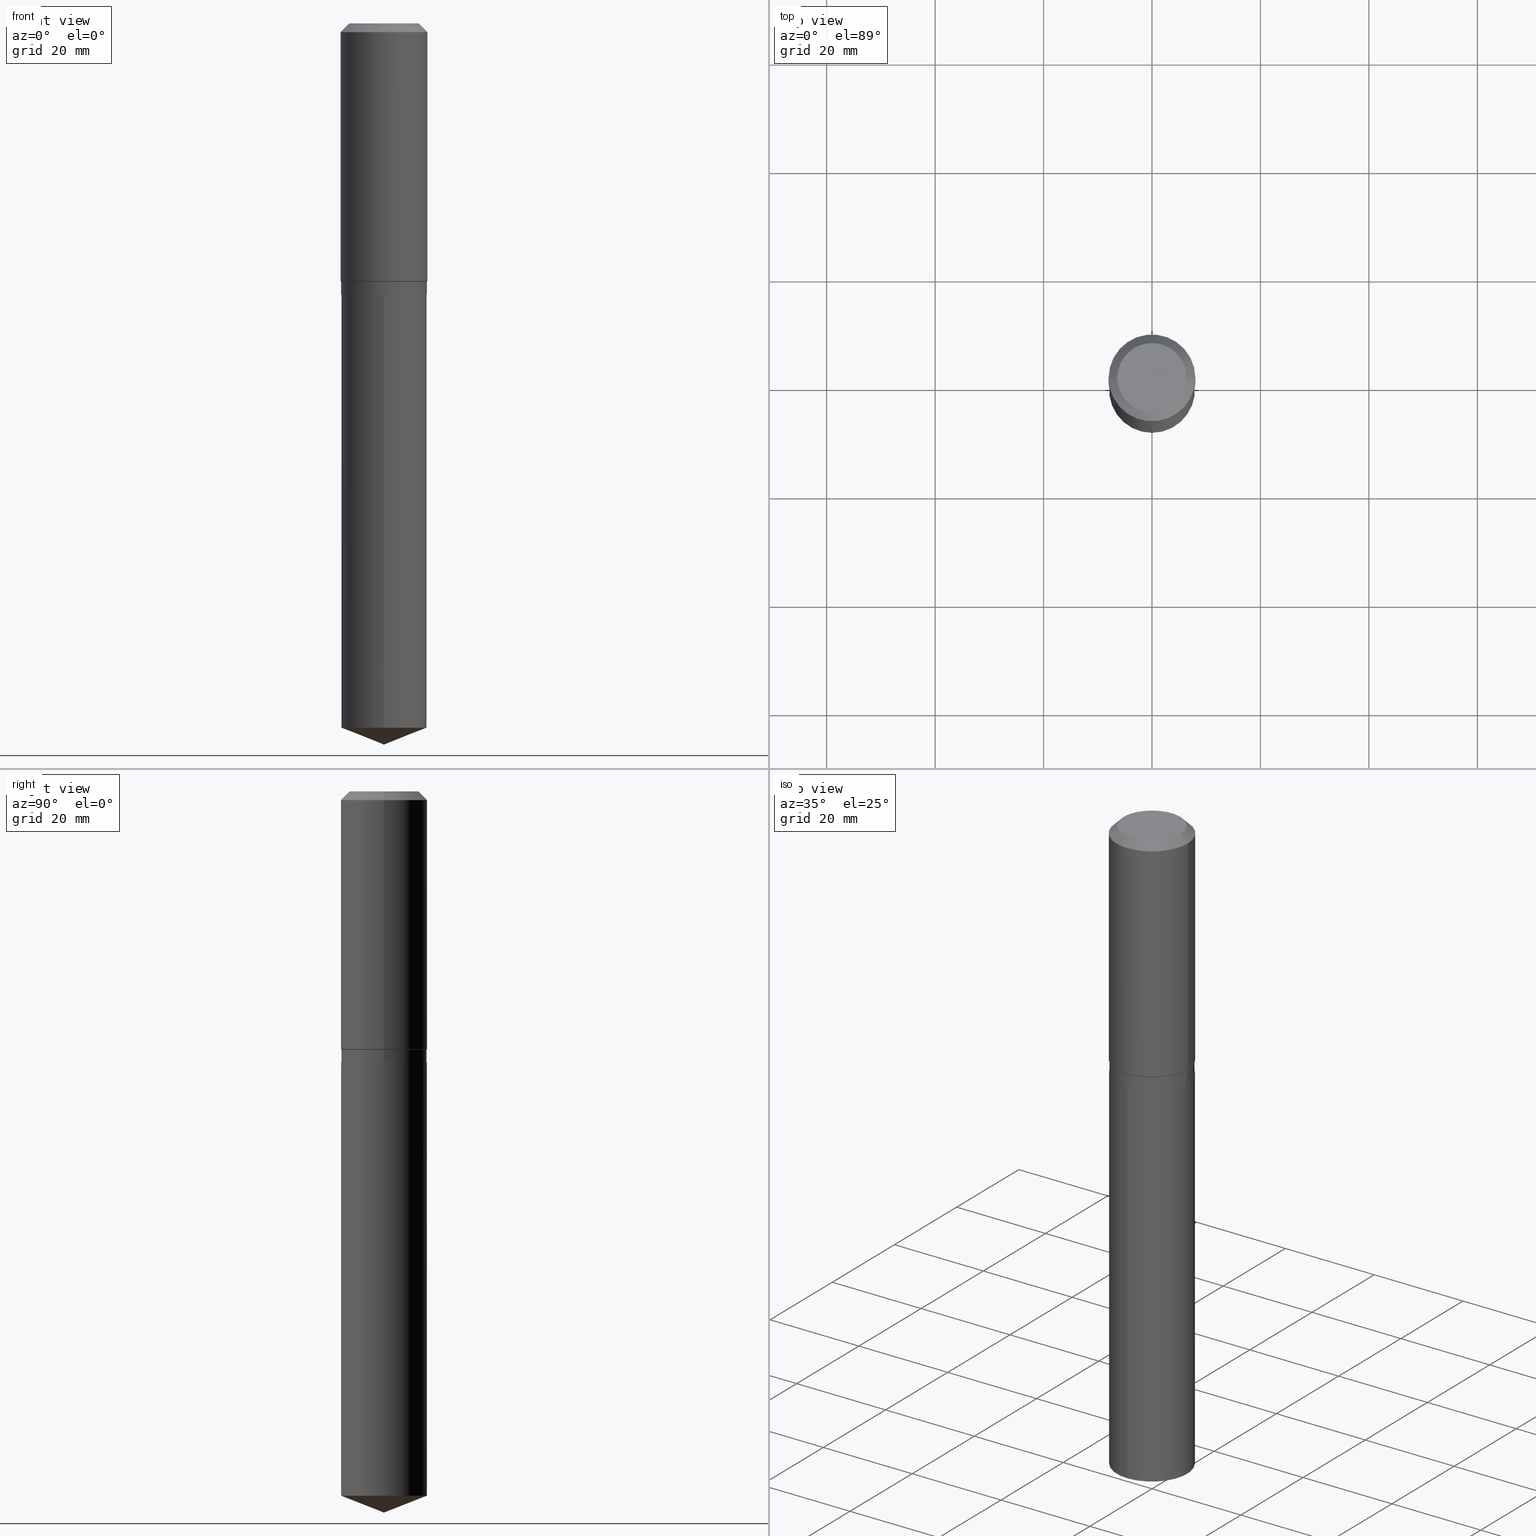
[diagram: canonical four-view strip — front | top / right | iso, engineering-drawing reading convention]
A machine part, canonical four-view strip (front | top / right | iso — engineering-drawing reading convention). The complete STEP part file that produces these views, byte-faithful:
ISO-10303-21;
HEADER;
FILE_DESCRIPTION (( 'STEP AP203' ),
    '1' );
FILE_NAME ('66604.STEP',
    '2024-04-25T01:51:07',
    ( '' ),
    ( '' ),
    'SwSTEP 2.0',
    'SolidWorks 2023',
    '' );
FILE_SCHEMA (( 'CONFIG_CONTROL_DESIGN' ));
ENDSEC;

DATA;
#1 = ORIENTED_EDGE ( 'NONE', *, *, #155, .F. ) ;
#2 = DATE_AND_TIME ( #438, #364 ) ;
#3 = CARTESIAN_POINT ( 'NONE',  ( 0.2519600000000000173, -2.054606664725195058E-15, 3.855188123729206640E-18 ) ) ;
#4 = CC_DESIGN_SECURITY_CLASSIFICATION ( #302, ( #25 ) ) ;
#5 = LINE ( 'NONE', #118, #153 ) ;
#6 = DIRECTION ( 'NONE',  ( 1.000000000000000000, -6.982962677686264344E-15, 0.000000000000000000 ) ) ;
#7 = CARTESIAN_POINT ( 'NONE',  ( 4.813416251214202584E-29, -6.872282719244960739E-15, -1.968299999999999272 ) ) ;
#8 = ORIENTED_EDGE ( 'NONE', *, *, #274, .F. ) ;
#9 = CARTESIAN_POINT ( 'NONE',  ( -0.3110499999999999932, -4.497865342670600152E-15, -1.967799999999999327 ) ) ;
#10 = ADVANCED_FACE ( 'NONE', ( #285 ), #401, .T. ) ;
#11 = PERSON_AND_ORGANIZATION ( #267, #194 ) ;
#12 = CARTESIAN_POINT ( 'NONE',  ( 1.540400801016026329E-30, -2.199284095337310135E-16, -0.06299000000000036514 ) ) ;
#13 = APPLICATION_CONTEXT ( 'configuration controlled 3d designs of mechanical parts and assemblies' ) ;
#14 = CARTESIAN_POINT ( 'NONE',  ( 0.3149500000000000077, -2.380642253931875190E-15, -0.06299000000000036514 ) ) ;
#15 = DIRECTION ( 'NONE',  ( -6.982962677686266711E-15, -1.000000000000000000, 3.498627837350020000E-15 ) ) ;
#16 = AXIS2_PLACEMENT_3D ( 'NONE', #188, #291, #29 ) ;
#17 = VECTOR ( 'NONE', #445, 39.37007874015748854 ) ;
#18 = ORIENTED_EDGE ( 'NONE', *, *, #82, .T. ) ;
#19 = DIRECTION ( 'NONE',  ( -2.445468806185136597E-29, 3.491481338843145583E-15, 1.000000000000000000 ) ) ;
#20 = CARTESIAN_POINT ( 'NONE',  ( -8.346861266608468527E-28, 1.191859629935574637E-13, 34.13407874015748433 ) ) ;
#21 = DIRECTION ( 'NONE',  ( -2.445468806185136597E-29, 3.491481338843145583E-15, 1.000000000000000000 ) ) ;
#22 = EDGE_CURVE ( 'NONE', #470, #327, #127, .T. ) ;
#23 = VECTOR ( 'NONE', #360, 39.37007874015748143 ) ;
#24 = COORDINATED_UNIVERSAL_TIME_OFFSET ( 5, 0, .BEHIND. ) ;
#25 = PRODUCT_DEFINITION_FORMATION_WITH_SPECIFIED_SOURCE ( 'ANY', '', #257, .NOT_KNOWN. ) ;
#26 = DIRECTION ( 'NONE',  ( -2.445324435619551489E-29, 3.491688085710125580E-15, 1.000000000000000000 ) ) ;
#27 = ORIENTED_EDGE ( 'NONE', *, *, #68, .T. ) ;
#28 = EDGE_LOOP ( 'NONE', ( #47, #18, #280, #375 ) ) ;
#29 = DIRECTION ( 'NONE',  ( 1.000000000000000000, -6.982962677686266711E-15, 4.876176775795936353E-29 ) ) ;
#30 = ORIENTED_EDGE ( 'NONE', *, *, #144, .T. ) ;
#31 = AXIS2_PLACEMENT_3D ( 'NONE', #65, #26, #403 ) ;
#32 = AXIS2_PLACEMENT_3D ( 'NONE', #427, #352, #171 ) ;
#33 = CARTESIAN_POINT ( 'NONE',  ( 0.3105500000000000482, -9.040841778800431358E-15, -1.968299999999999272 ) ) ;
#34 = VERTEX_POINT ( 'NONE', #301 ) ;
#35 = ADVANCED_FACE ( 'NONE', ( #271 ), #243, .F. ) ;
#36 = DIRECTION ( 'NONE',  ( -2.445468806185136597E-29, 3.491481338843145583E-15, 1.000000000000000000 ) ) ;
#37 = ADVANCED_FACE ( 'NONE', ( #310 ), #461, .T. ) ;
#38 = VERTEX_POINT ( 'NONE', #134 ) ;
#39 = MANIFOLD_SOLID_BREP ( 'Body-Move/Copy2[1]', #220 ) ;
#40 = AXIS2_PLACEMENT_3D ( 'NONE', #444, #489, #104 ) ;
#41 = VERTEX_POINT ( 'NONE', #209 ) ;
#42 = ADVANCED_FACE ( 'NONE', ( #93 ), #176, .T. ) ;
#43 = DATE_AND_TIME ( #217, #424 ) ;
#44 = CARTESIAN_POINT ( 'NONE',  ( 4.813416251214202584E-29, -6.872282719244960739E-15, -1.968299999999999272 ) ) ;
#45 = DESIGN_CONTEXT ( 'detailed design', #465, 'design' ) ;
#46 = EDGE_CURVE ( 'NONE', #38, #117, #318, .T. ) ;
#47 = ORIENTED_EDGE ( 'NONE', *, *, #191, .T. ) ;
#48 = DIRECTION ( 'NONE',  ( -2.445324435619551489E-29, 3.491688085710125580E-15, 1.000000000000000000 ) ) ;
#49 = CARTESIAN_POINT ( 'NONE',  ( 0.000000000000000000, 0.000000000000000000, 0.000000000000000000 ) ) ;
#50 = AXIS2_PLACEMENT_3D ( 'NONE', #85, #346, #154 ) ;
#51 = DATE_AND_TIME ( #390, #90 ) ;
#52 = EDGE_CURVE ( 'NONE', #377, #265, #353, .T. ) ;
#53 = CARTESIAN_POINT ( 'NONE',  ( -9.427742298522569579E-47, 1.346031739168368629E-32, 3.855188123715871501E-18 ) ) ;
#54 = ORIENTED_EDGE ( 'NONE', *, *, #159, .F. ) ;
#55 = LINE ( 'NONE', #14, #248 ) ;
#56 = AXIS2_PLACEMENT_3D ( 'NONE', #160, #382, #269 ) ;
#57 = EDGE_LOOP ( 'NONE', ( #142, #59, #105, #146 ) ) ;
#58 = LINE ( 'NONE', #437, #137 ) ;
#59 = ORIENTED_EDGE ( 'NONE', *, *, #396, .T. ) ;
#60 = APPROVAL ( #409, 'UNSPECIFIED' ) ;
#61 = CARTESIAN_POINT ( 'NONE',  ( -2.172050540894265111E-15, -0.3110500000000069321, -1.968299999999998162 ) ) ;
#62 = DIRECTION ( 'NONE',  ( -2.445468806185136597E-29, 3.491481338843145583E-15, 1.000000000000000000 ) ) ;
#63 = CONICAL_SURFACE ( 'NONE', #338, 99.94676754583952061, 1.195550537616117959 ) ;
#64 = AXIS2_PLACEMENT_3D ( 'NONE', #277, #19, #210 ) ;
#65 = CARTESIAN_POINT ( 'NONE',  ( 4.813416251214202584E-29, -6.872282719244960739E-15, -1.968299999999999272 ) ) ;
#66 = VERTEX_POINT ( 'NONE', #392 ) ;
#67 = ORIENTED_EDGE ( 'NONE', *, *, #404, .T. ) ;
#68 = EDGE_CURVE ( 'NONE', #327, #470, #212, .T. ) ;
#69 = CARTESIAN_POINT ( 'NONE',  ( 4.813416251214202584E-29, -6.872282719244960739E-15, -1.968299999999999272 ) ) ;
#70 = ORIENTED_EDGE ( 'NONE', *, *, #168, .F. ) ;
#71 = AXIS2_PLACEMENT_3D ( 'NONE', #182, #73, #407 ) ;
#72 = EDGE_CURVE ( 'NONE', #41, #475, #391, .T. ) ;
#73 = DIRECTION ( 'NONE',  ( -2.445468806185136597E-29, 3.491481338843145583E-15, 1.000000000000000000 ) ) ;
#74 = CARTESIAN_POINT ( 'NONE',  ( 0.000000000000000000, 0.000000000000000000, 0.000000000000000000 ) ) ;
#75 = DIRECTION ( 'NONE',  ( 2.438088387897960049E-29, -3.491481338843145188E-15, -1.000000000000000000 ) ) ;
#76 = FACE_OUTER_BOUND ( 'NONE', #114, .T. ) ;
#77 = CARTESIAN_POINT ( 'NONE',  ( 4.813416251214202584E-29, -6.872282719244960739E-15, -1.968299999999999272 ) ) ;
#78 = ORIENTED_EDGE ( 'NONE', *, *, #460, .T. ) ;
#79 = CIRCLE ( 'NONE', #128, 0.3149500000000000077 ) ;
#80 = DIRECTION ( 'NONE',  ( -2.445468806185136877E-29, 3.491481338843145188E-15, 1.000000000000000000 ) ) ;
#81 = AXIS2_PLACEMENT_3D ( 'NONE', #12, #115, #264 ) ;
#82 = EDGE_CURVE ( 'NONE', #34, #362, #58, .T. ) ;
#83 = CARTESIAN_POINT ( 'NONE',  ( 0.3149500000000002298, -8.731147384045044792E-15, -1.870799999999999352 ) ) ;
#84 = DIRECTION ( 'NONE',  ( 1.000000000000000000, -6.982962677686265922E-15, 4.876176775795935793E-29 ) ) ;
#85 = CARTESIAN_POINT ( 'NONE',  ( 1.250438744607617227E-28, -1.785424981427193522E-14, -5.113474146559972233 ) ) ;
#86 = ORIENTED_EDGE ( 'NONE', *, *, #278, .F. ) ;
#87 = PERSON_AND_ORGANIZATION_ROLE ( 'classification_officer' ) ;
#88 = ADVANCED_FACE ( 'NONE', ( #98 ), #163, .T. ) ;
#89 = CIRCLE ( 'NONE', #71, 0.3105500000000000482 ) ;
#90 = LOCAL_TIME ( 21, 51, 7.000000000000000000, #239 ) ;
#91 = PRODUCT_DEFINITION ( 'UNKNOWN', '', #25, #45 ) ;
#92 = DIRECTION ( 'NONE',  ( -2.445324435619551489E-29, 3.491688085710125580E-15, 1.000000000000000000 ) ) ;
#93 = FACE_OUTER_BOUND ( 'NONE', #187, .T. ) ;
#94 = ORIENTED_EDGE ( 'NONE', *, *, #72, .F. ) ;
#95 = AXIS2_PLACEMENT_3D ( 'NONE', #44, #453, #164 ) ;
#96 = ADVANCED_FACE ( 'NONE', ( #359 ), #241, .T. ) ;
#97 = CARTESIAN_POINT ( 'NONE',  ( 0.3149500000000001743, -2.199284095337290660E-15, 1.535751875536930690E-29 ) ) ;
#98 = FACE_OUTER_BOUND ( 'NONE', #473, .T. ) ;
#99 = DIRECTION ( 'NONE',  ( 1.000000000000000000, -6.982962677686265133E-15, 0.000000000000000000 ) ) ;
#100 = CARTESIAN_POINT ( 'NONE',  ( 1.250438744607617227E-28, -1.785424981427193522E-14, -5.113474146559972233 ) ) ;
#101 = COORDINATED_UNIVERSAL_TIME_OFFSET ( 5, 0, .BEHIND. ) ;
#102 = DIRECTION ( 'NONE',  ( 1.000000000000000000, -6.982962677686266711E-15, 0.000000000000000000 ) ) ;
#103 = EDGE_LOOP ( 'NONE', ( #30, #78, #366, #319 ) ) ;
#104 = DIRECTION ( 'NONE',  ( 1.000000000000000000, -6.982962677686264344E-15, 0.000000000000000000 ) ) ;
#105 = ORIENTED_EDGE ( 'NONE', *, *, #198, .F. ) ;
#106 = ORIENTED_EDGE ( 'NONE', *, *, #485, .T. ) ;
#107 = DIRECTION ( 'NONE',  ( -2.445468806185136597E-29, 3.491481338843145583E-15, 1.000000000000000000 ) ) ;
#108 = EDGE_LOOP ( 'NONE', ( #1, #161, #408, #201 ) ) ;
#109 = VECTOR ( 'NONE', #434, 39.37007874015748854 ) ;
#110 = ADVANCED_FACE ( 'NONE', ( #398 ), #63, .T. ) ;
#111 = VECTOR ( 'NONE', #313, 39.37007874015748143 ) ;
#112 = VECTOR ( 'NONE', #320, 39.37007874015748143 ) ;
#113 = FACE_OUTER_BOUND ( 'NONE', #166, .T. ) ;
#114 = EDGE_LOOP ( 'NONE', ( #429, #229, #371, #70 ) ) ;
#115 = DIRECTION ( 'NONE',  ( 2.445468806185136597E-29, -3.491481338843145583E-15, -1.000000000000000000 ) ) ;
#116 = CARTESIAN_POINT ( 'NONE',  ( 0.3110499999999999932, -2.172050540894313232E-15, 1.516734786111326002E-29 ) ) ;
#117 = VERTEX_POINT ( 'NONE', #321 ) ;
#118 = CARTESIAN_POINT ( 'NONE',  ( -0.3149500000000001743, 2.237854346276436774E-15, -1.549218606675783237E-29 ) ) ;
#119 = CONICAL_SURFACE ( 'NONE', #81, 0.3149500000000000077, 0.7853981633974452814 ) ;
#120 = ORIENTED_EDGE ( 'NONE', *, *, #347, .F. ) ;
#121 = ORIENTED_EDGE ( 'NONE', *, *, #278, .T. ) ;
#122 = EDGE_CURVE ( 'NONE', #247, #183, #350, .T. ) ;
#123 = PERSON_AND_ORGANIZATION_ROLE ( 'design_supplier' ) ;
#124 = DATE_TIME_ROLE ( 'creation_date' ) ;
#125 = CALENDAR_DATE ( 2024, 24, 4 ) ;
#126 = EDGE_CURVE ( 'NONE', #362, #183, #411, .T. ) ;
#127 = CIRCLE ( 'NONE', #331, 0.2519600000000000173 ) ;
#128 = AXIS2_PLACEMENT_3D ( 'NONE', #326, #373, #102 ) ;
#129 = CARTESIAN_POINT ( 'NONE',  ( 0.3110499999999999932, -8.717530606823556276E-15, -1.874699999999999589 ) ) ;
#130 = AXIS2_PLACEMENT_3D ( 'NONE', #233, #378, #196 ) ;
#131 = ADVANCED_FACE ( 'NONE', ( #279 ), #136, .T. ) ;
#132 = DIRECTION ( 'NONE',  ( -2.445468806185136597E-29, 3.491481338843145583E-15, 1.000000000000000000 ) ) ;
#133 = ORIENTED_EDGE ( 'NONE', *, *, #198, .T. ) ;
#134 = CARTESIAN_POINT ( 'NONE',  ( -2.172050540894188197E-15, -0.3110500000000178678, -5.113474146559971345 ) ) ;
#135 = ORIENTED_EDGE ( 'NONE', *, *, #52, .F. ) ;
#136 = CYLINDRICAL_SURFACE ( 'NONE', #172, 0.3149500000000001743 ) ;
#137 = VECTOR ( 'NONE', #211, 39.37007874015748143 ) ;
#138 = CARTESIAN_POINT ( 'NONE',  ( 4.584520370955274765E-29, -6.545480065929243438E-15, -1.874699999999999589 ) ) ;
#139 = DIRECTION ( 'NONE',  ( 1.000000000000000000, -6.982962677686266711E-15, 4.876115136096691995E-29 ) ) ;
#140 = ORIENTED_EDGE ( 'NONE', *, *, #168, .T. ) ;
#141 = CYLINDRICAL_SURFACE ( 'NONE', #16, 0.3110499999999999932 ) ;
#142 = ORIENTED_EDGE ( 'NONE', *, *, #274, .T. ) ;
#143 = ORIENTED_EDGE ( 'NONE', *, *, #416, .F. ) ;
#144 = EDGE_CURVE ( 'NONE', #38, #369, #204, .T. ) ;
#145 = VECTOR ( 'NONE', #249, 39.37007874015748854 ) ;
#146 = ORIENTED_EDGE ( 'NONE', *, *, #422, .F. ) ;
#147 = AXIS2_PLACEMENT_3D ( 'NONE', #77, #157, #306 ) ;
#148 = LINE ( 'NONE', #297, #17 ) ;
#149 = CC_DESIGN_PERSON_AND_ORGANIZATION_ASSIGNMENT ( #421, #87, ( #302 ) ) ;
#150 = EDGE_LOOP ( 'NONE', ( #135, #308, #478, #342 ) ) ;
#151 = DIRECTION ( 'NONE',  ( 1.000000000000000000, 0.000000000000000000, 0.000000000000000000 ) ) ;
#152 = ORIENTED_EDGE ( 'NONE', *, *, #365, .F. ) ;
#153 = VECTOR ( 'NONE', #80, 39.37007874015748143 ) ;
#154 = DIRECTION ( 'NONE',  ( -6.982962677686266711E-15, -1.000000000000000000, 3.513066058401238903E-15 ) ) ;
#155 = EDGE_CURVE ( 'NONE', #327, #340, #55, .T. ) ;
#156 = LINE ( 'NONE', #116, #309 ) ;
#157 = DIRECTION ( 'NONE',  ( 2.445324435619551208E-29, -3.491688085710125580E-15, -1.000000000000000000 ) ) ;
#158 = SHAPE_DEFINITION_REPRESENTATION ( #230, #361 ) ;
#159 = EDGE_CURVE ( 'NONE', #34, #247, #345, .T. ) ;
#160 = CARTESIAN_POINT ( 'NONE',  ( 1.540400801016026329E-30, -2.199284095337310135E-16, -0.06299000000000036514 ) ) ;
#161 = ORIENTED_EDGE ( 'NONE', *, *, #22, .F. ) ;
#162 = APPROVAL_ROLE ( '' ) ;
#163 = CONICAL_SURFACE ( 'NONE', #179, 0.3105500000000000482, 0.7853981633975165577 ) ;
#164 = DIRECTION ( 'NONE',  ( 1.000000000000000000, -6.982962677686268288E-15, 0.000000000000000000 ) ) ;
#165 = ADVANCED_FACE ( 'NONE', ( #439 ), #258, .T. ) ;
#166 = EDGE_LOOP ( 'NONE', ( #441, #27 ) ) ;
#167 = APPROVAL_DATE_TIME ( #385, #237 ) ;
#168 = EDGE_CURVE ( 'NONE', #203, #117, #286, .T. ) ;
#169 = DIRECTION ( 'NONE',  ( 0.7071067811865453523, -7.319954787623248157E-15, -0.7071067811865496822 ) ) ;
#170 =( NAMED_UNIT ( * ) PLANE_ANGLE_UNIT ( ) SI_UNIT ( $, .RADIAN. ) );
#171 = DIRECTION ( 'NONE',  ( 1.000000000000000000, -6.982962677686266711E-15, 0.000000000000000000 ) ) ;
#172 = AXIS2_PLACEMENT_3D ( 'NONE', #428, #287, #477 ) ;
#173 = CARTESIAN_POINT ( 'NONE',  ( -8.346861266608468527E-28, 1.191859629935574637E-13, 34.13407874015748433 ) ) ;
#174 = CC_DESIGN_APPROVAL ( #237, ( #25 ) ) ;
#175 = CC_DESIGN_PERSON_AND_ORGANIZATION_ASSIGNMENT ( #442, #435, ( #91 ) ) ;
#176 = CYLINDRICAL_SURFACE ( 'NONE', #273, 0.3110499999999999932 ) ;
#177 = LINE ( 'NONE', #97, #112 ) ;
#178 = CARTESIAN_POINT ( 'NONE',  ( 4.812193516811110904E-29, -6.870536978575539236E-15, -1.967799999999999327 ) ) ;
#179 = AXIS2_PLACEMENT_3D ( 'NONE', #426, #21, #251 ) ;
#180 = VECTOR ( 'NONE', #383, 39.37007874015748143 ) ;
#181 = ORIENTED_EDGE ( 'NONE', *, *, #404, .F. ) ;
#182 = CARTESIAN_POINT ( 'NONE',  ( 4.813416251214202584E-29, -6.872282719244960739E-15, -1.968299999999999272 ) ) ;
#183 = VERTEX_POINT ( 'NONE', #225 ) ;
#184 = CC_DESIGN_PERSON_AND_ORGANIZATION_ASSIGNMENT ( #462, #123, ( #25 ) ) ;
#185 = ORIENTED_EDGE ( 'NONE', *, *, #159, .T. ) ;
#186 = LINE ( 'NONE', #328, #189 ) ;
#187 = EDGE_LOOP ( 'NONE', ( #299, #333, #86, #181 ) ) ;
#188 = CARTESIAN_POINT ( 'NONE',  ( 0.000000000000000000, 0.000000000000000000, 0.000000000000000000 ) ) ;
#189 = VECTOR ( 'NONE', #486, 39.37007874015748143 ) ;
#190 = APPROVAL_PERSON_ORGANIZATION ( #348, #60, #250 ) ;
#191 = EDGE_CURVE ( 'NONE', #247, #34, #89, .T. ) ;
#192 = DIRECTION ( 'NONE',  ( -2.445468806185136597E-29, 3.491481338843145583E-15, 1.000000000000000000 ) ) ;
#193 = APPROVAL_STATUS ( 'not_yet_approved' ) ;
#194 = ORGANIZATION ( 'UNSPECIFIED', 'UNSPECIFIED', '' ) ;
#195 = COORDINATED_UNIVERSAL_TIME_OFFSET ( 5, 0, .BEHIND. ) ;
#196 = DIRECTION ( 'NONE',  ( -6.982962677686266711E-15, -1.000000000000000000, 3.513066058401238903E-15 ) ) ;
#197 = ORIENTED_EDGE ( 'NONE', *, *, #126, .T. ) ;
#198 = EDGE_CURVE ( 'NONE', #340, #394, #79, .T. ) ;
#199 = CARTESIAN_POINT ( 'NONE',  ( 4.584520370955274765E-29, -6.545480065929243438E-15, -1.874699999999999589 ) ) ;
#200 = CARTESIAN_POINT ( 'NONE',  ( 2.210143179581839306E-15, 0.3110499999999931098, -1.968300000000000383 ) ) ;
#201 = ORIENTED_EDGE ( 'NONE', *, *, #416, .T. ) ;
#202 = DIRECTION ( 'NONE',  ( -2.445468806185136877E-29, 3.491481338843145188E-15, 1.000000000000000000 ) ) ;
#203 = VERTEX_POINT ( 'NONE', #367 ) ;
#204 = CIRCLE ( 'NONE', #228, 0.3110499999999999932 ) ;
#205 = FACE_OUTER_BOUND ( 'NONE', #336, .T. ) ;
#206 = AXIS2_PLACEMENT_3D ( 'NONE', #74, #335, #151 ) ;
#207 = DATE_TIME_ROLE ( 'classification_date' ) ;
#208 =( LENGTH_UNIT ( ) NAMED_UNIT ( * ) SI_UNIT ( $, .METRE. ) );
#209 = CARTESIAN_POINT ( 'NONE',  ( 0.3110499999999999932, -8.717530606823556276E-15, -1.874699999999999589 ) ) ;
#210 = DIRECTION ( 'NONE',  ( 1.000000000000000000, -6.982962677686265133E-15, 0.000000000000000000 ) ) ;
#211 = DIRECTION ( 'NONE',  ( -0.7071067811865957564, 7.493145998870527710E-15, 0.7071067811864992780 ) ) ;
#212 = CIRCLE ( 'NONE', #402, 0.2519600000000000173 ) ;
#213 = DIRECTION ( 'NONE',  ( -2.445468806185136597E-29, 3.491481338843145583E-15, 1.000000000000000000 ) ) ;
#214 = APPROVAL_PERSON_ORGANIZATION ( #446, #322, #490 ) ;
#215 = ORIENTED_EDGE ( 'NONE', *, *, #422, .T. ) ;
#216 = ORIENTED_EDGE ( 'NONE', *, *, #481, .F. ) ;
#217 = CALENDAR_DATE ( 2024, 24, 4 ) ;
#218 = ADVANCED_FACE ( 'NONE', ( #479 ), #141, .T. ) ;
#219 = DIRECTION ( 'NONE',  ( -6.982962677686266711E-15, -1.000000000000000000, 3.498627837350020000E-15 ) ) ;
#220 = CLOSED_SHELL ( 'NONE', ( #165, #96, #110, #393, #452 ) ) ;
#221 = DIRECTION ( 'NONE',  ( -2.445324435619551489E-29, 3.491688085710125580E-15, 1.000000000000000000 ) ) ;
#222 = EDGE_CURVE ( 'NONE', #470, #394, #186, .T. ) ;
#223 = CC_DESIGN_APPROVAL ( #60, ( #302 ) ) ;
#224 = ORIENTED_EDGE ( 'NONE', *, *, #68, .F. ) ;
#225 = CARTESIAN_POINT ( 'NONE',  ( 0.3110499999999999932, -9.042587519469852073E-15, -1.967799999999999327 ) ) ;
#226 = ORIENTED_EDGE ( 'NONE', *, *, #144, .F. ) ;
#227 = DIRECTION ( 'NONE',  ( -6.982962677686266711E-15, -1.000000000000000000, 3.513066058401238903E-15 ) ) ;
#228 = AXIS2_PLACEMENT_3D ( 'NONE', #100, #245, #395 ) ;
#229 = ORIENTED_EDGE ( 'NONE', *, *, #365, .T. ) ;
#230 = PRODUCT_DEFINITION_SHAPE ( 'NONE', 'NONE',  #91 ) ;
#231 = ORIENTED_EDGE ( 'NONE', *, *, #481, .T. ) ;
#232 = DIRECTION ( 'NONE',  ( -2.445468806185136597E-29, 3.491481338843145583E-15, 1.000000000000000000 ) ) ;
#233 = CARTESIAN_POINT ( 'NONE',  ( 4.813416251214202584E-29, -6.872282719244960739E-15, -1.968299999999999272 ) ) ;
#234 = EDGE_LOOP ( 'NONE', ( #121, #292, #8, #94 ) ) ;
#235 = LINE ( 'NONE', #200, #180 ) ;
#236 = CARTESIAN_POINT ( 'NONE',  ( -4.713871149261284790E-47, 6.730158695841843144E-33, 1.927594061857935750E-18 ) ) ;
#237 = APPROVAL ( #281, 'UNSPECIFIED' ) ;
#238 = DIRECTION ( 'NONE',  ( 1.000000000000000000, -6.982962677686265133E-15, 0.000000000000000000 ) ) ;
#239 = COORDINATED_UNIVERSAL_TIME_OFFSET ( 5, 0, .BEHIND. ) ;
#240 = MECHANICAL_CONTEXT ( 'NONE', #13, 'mechanical' ) ;
#241 = CONICAL_SURFACE ( 'NONE', #484, 99.94676754583952061, 1.195550537616117959 ) ;
#242 = AXIS2_PLACEMENT_3D ( 'NONE', #199, #36, #238 ) ;
#243 = PLANE ( 'NONE',  #363 ) ;
#244 = CARTESIAN_POINT ( 'NONE',  ( 0.000000000000000000, 0.000000000000000000, 0.000000000000000000 ) ) ;
#245 = DIRECTION ( 'NONE',  ( -2.445324435619551489E-29, 3.491688085710125580E-15, 1.000000000000000000 ) ) ;
#246 = CC_DESIGN_PERSON_AND_ORGANIZATION_ASSIGNMENT ( #349, #425, ( #257 ) ) ;
#247 = VERTEX_POINT ( 'NONE', #33 ) ;
#248 = VECTOR ( 'NONE', #169, 39.37007874015748143 ) ;
#249 = DIRECTION ( 'NONE',  ( -0.7071067811865474617, 7.493145998870352582E-15, 0.7071067811865474617 ) ) ;
#250 = APPROVAL_ROLE ( '' ) ;
#251 = DIRECTION ( 'NONE',  ( 1.000000000000000000, -6.982962677686268288E-15, 0.000000000000000000 ) ) ;
#252 = CARTESIAN_POINT ( 'NONE',  ( -9.427742298522569579E-47, 1.346031739168368629E-32, 3.855188123715871501E-18 ) ) ;
#253 = EDGE_CURVE ( 'NONE', #183, #362, #476, .T. ) ;
#254 = ORIENTED_EDGE ( 'NONE', *, *, #126, .F. ) ;
#255 = CIRCLE ( 'NONE', #40, 0.3149500000000002298 ) ;
#256 = CC_DESIGN_APPROVAL ( #322, ( #91 ) ) ;
#257 = PRODUCT ( '66604', '66604', '', ( #240 ) ) ;
#258 = CYLINDRICAL_SURFACE ( 'NONE', #423, 0.3110499999999999932 ) ;
#259 = EDGE_LOOP ( 'NONE', ( #399, #54 ) ) ;
#260 = CIRCLE ( 'NONE', #324, 0.3110499999999999932 ) ;
#261 = ORIENTED_EDGE ( 'NONE', *, *, #485, .F. ) ;
#262 = FACE_OUTER_BOUND ( 'NONE', #108, .T. ) ;
#263 =( CONVERSION_BASED_UNIT ( 'INCH', #450 ) LENGTH_UNIT ( ) NAMED_UNIT ( #276 ) );
#264 = DIRECTION ( 'NONE',  ( -1.000000000000000000, 6.982962677686266711E-15, 0.000000000000000000 ) ) ;
#265 = VERTEX_POINT ( 'NONE', #334 ) ;
#266 = CARTESIAN_POINT ( 'NONE',  ( 4.574983042611151699E-29, -6.531863288707754922E-15, -1.870799999999999352 ) ) ;
#267 = PERSON ( 'UNSPECIFIED', 'UNSPECIFIED', 'UNSPECIFIED', ('UNSPECIFIED'), ('UNSPECIFIED'), ('UNSPECIFIED') ) ;
#268 = AXIS2_PLACEMENT_3D ( 'NONE', #298, #414, #337 ) ;
#269 = DIRECTION ( 'NONE',  ( -1.000000000000000000, 6.982962677686266711E-15, 0.000000000000000000 ) ) ;
#270 = CARTESIAN_POINT ( 'NONE',  ( -0.2519600000000000173, 1.869391481036695286E-15, 3.855188123703182704E-18 ) ) ;
#271 = FACE_OUTER_BOUND ( 'NONE', #259, .T. ) ;
#272 = APPLICATION_PROTOCOL_DEFINITION ( 'international standard', 'config_control_design', 1994, #13 ) ;
#273 = AXIS2_PLACEMENT_3D ( 'NONE', #244, #431, #275 ) ;
#274 = EDGE_CURVE ( 'NONE', #475, #265, #255, .T. ) ;
#275 = DIRECTION ( 'NONE',  ( 1.000000000000000000, -6.982962677686266711E-15, 4.876176775795936353E-29 ) ) ;
#276 = DIMENSIONAL_EXPONENTS ( 1.000000000000000000, 0.000000000000000000, 0.000000000000000000, 0.000000000000000000, 0.000000000000000000, 0.000000000000000000, 0.000000000000000000 ) ;
#277 = CARTESIAN_POINT ( 'NONE',  ( 4.584520370955274765E-29, -6.545480065929243438E-15, -1.874699999999999589 ) ) ;
#278 = EDGE_CURVE ( 'NONE', #41, #377, #315, .T. ) ;
#279 = FACE_OUTER_BOUND ( 'NONE', #57, .T. ) ;
#280 = ORIENTED_EDGE ( 'NONE', *, *, #253, .F. ) ;
#281 = APPROVAL_STATUS ( 'not_yet_approved' ) ;
#282 = DIRECTION ( 'NONE',  ( -2.445468806185136877E-29, 3.491481338843145188E-15, 1.000000000000000000 ) ) ;
#283 = CARTESIAN_POINT ( 'NONE',  ( -0.3110499999999999932, -4.335336886347452253E-15, -1.874699999999999589 ) ) ;
#284 = ADVANCED_FACE ( 'NONE', ( #262 ), #432, .T. ) ;
#285 = FACE_OUTER_BOUND ( 'NONE', #150, .T. ) ;
#286 = CIRCLE ( 'NONE', #31, 0.3110499999999999932 ) ;
#287 = DIRECTION ( 'NONE',  ( -2.445468806185136597E-29, 3.491481338843145583E-15, 1.000000000000000000 ) ) ;
#288 = DIRECTION ( 'NONE',  ( -2.445468806185136597E-29, 3.491481338843145583E-15, 1.000000000000000000 ) ) ;
#289 = DIRECTION ( 'NONE',  ( -2.445324435619551489E-29, 3.491688085710125580E-15, 1.000000000000000000 ) ) ;
#290 = EDGE_LOOP ( 'NONE', ( #261, #231, #226 ) ) ;
#291 = DIRECTION ( 'NONE',  ( -2.445468806185136597E-29, 3.491481338843145583E-15, 1.000000000000000000 ) ) ;
#292 = ORIENTED_EDGE ( 'NONE', *, *, #52, .T. ) ;
#293 = APPROVAL_DATE_TIME ( #314, #322 ) ;
#294 = DIRECTION ( 'NONE',  ( 1.000000000000000000, -6.982962677686265133E-15, 0.000000000000000000 ) ) ;
#295 = CARTESIAN_POINT ( 'NONE',  ( 1.280429205764840004E-28, -1.828166493706166554E-14, -5.235999999999999766 ) ) ;
#296 = DIRECTION ( 'NONE',  ( 1.000000000000000000, -6.982962677686268288E-15, 0.000000000000000000 ) ) ;
#297 = CARTESIAN_POINT ( 'NONE',  ( 1.280371874490396796E-28, -1.828247881677821696E-14, -5.235999999999999766 ) ) ;
#298 = CARTESIAN_POINT ( 'NONE',  ( 4.584520370955274765E-29, -6.545480065929243438E-15, -1.874699999999999589 ) ) ;
#299 = ORIENTED_EDGE ( 'NONE', *, *, #253, .T. ) ;
#300 = ADVANCED_FACE ( 'NONE', ( #113 ), #412, .F. ) ;
#301 = CARTESIAN_POINT ( 'NONE',  ( -0.3105500000000000482, -4.663043026167858463E-15, -1.968299999999999272 ) ) ;
#302 = SECURITY_CLASSIFICATION ( '', '', #351 ) ;
#303 = EDGE_CURVE ( 'NONE', #117, #203, #260, .T. ) ;
#304 = DIRECTION ( 'NONE',  ( -1.000000000000000000, 6.982962677686265922E-15, -4.876176775795935793E-29 ) ) ;
#305 = EDGE_CURVE ( 'NONE', #265, #475, #354, .T. ) ;
#306 = DIRECTION ( 'NONE',  ( 6.982962677686265922E-15, 1.000000000000000000, -3.491688085710125580E-15 ) ) ;
#307 = LINE ( 'NONE', #417, #379 ) ;
#308 = ORIENTED_EDGE ( 'NONE', *, *, #381, .T. ) ;
#309 = VECTOR ( 'NONE', #282, 39.37007874015748143 ) ;
#310 = FACE_OUTER_BOUND ( 'NONE', #356, .T. ) ;
#311 = PERSON_AND_ORGANIZATION_ROLE ( 'creator' ) ;
#312 = COORDINATED_UNIVERSAL_TIME_OFFSET ( 5, 0, .BEHIND. ) ;
#313 = DIRECTION ( 'NONE',  ( -2.445324435619551208E-29, 3.491688085710125580E-15, 1.000000000000000000 ) ) ;
#314 = DATE_AND_TIME ( #125, #468 ) ;
#315 = CIRCLE ( 'NONE', #268, 0.3110499999999999932 ) ;
#316 = CC_DESIGN_PERSON_AND_ORGANIZATION_ASSIGNMENT ( #11, #311, ( #25 ) ) ;
#317 = APPROVAL_PERSON_ORGANIZATION ( #406, #237, #162 ) ;
#318 = LINE ( 'NONE', #61, #111 ) ;
#319 = ORIENTED_EDGE ( 'NONE', *, *, #46, .F. ) ;
#320 = DIRECTION ( 'NONE',  ( -2.445468806185136877E-29, 3.491481338843145188E-15, 1.000000000000000000 ) ) ;
#321 = CARTESIAN_POINT ( 'NONE',  ( -2.172050540894265111E-15, -0.3110500000000069321, -1.968299999999998162 ) ) ;
#322 = APPROVAL ( #193, 'UNSPECIFIED' ) ;
#323 = ORIENTED_EDGE ( 'NONE', *, *, #82, .F. ) ;
#324 = AXIS2_PLACEMENT_3D ( 'NONE', #420, #48, #343 ) ;
#325 = VECTOR ( 'NONE', #487, 39.37007874015748854 ) ;
#326 = CARTESIAN_POINT ( 'NONE',  ( 1.540400801016026329E-30, -2.199284095337310135E-16, -0.06299000000000036514 ) ) ;
#327 = VERTEX_POINT ( 'NONE', #3 ) ;
#328 = CARTESIAN_POINT ( 'NONE',  ( -0.3149500000000000077, 1.979355685803558833E-15, -0.06299000000000036514 ) ) ;
#329 = ORIENTED_EDGE ( 'NONE', *, *, #303, .T. ) ;
#330 = CC_DESIGN_DATE_AND_TIME_ASSIGNMENT ( #43, #124, ( #91 ) ) ;
#331 = AXIS2_PLACEMENT_3D ( 'NONE', #252, #107, #368 ) ;
#332 = AXIS2_PLACEMENT_3D ( 'NONE', #236, #75, #304 ) ;
#333 = ORIENTED_EDGE ( 'NONE', *, *, #347, .T. ) ;
#334 = CARTESIAN_POINT ( 'NONE',  ( -0.3149500000000002298, -4.294008942431317359E-15, -1.870799999999999352 ) ) ;
#335 = DIRECTION ( 'NONE',  ( 0.000000000000000000, 0.000000000000000000, 1.000000000000000000 ) ) ;
#336 = EDGE_LOOP ( 'NONE', ( #224, #419, #133, #483 ) ) ;
#337 = DIRECTION ( 'NONE',  ( 1.000000000000000000, -6.982962677686265133E-15, 0.000000000000000000 ) ) ;
#338 = AXIS2_PLACEMENT_3D ( 'NONE', #20, #289, #219 ) ;
#339 = CONICAL_SURFACE ( 'NONE', #95, 0.3105500000000000482, 0.7853981633975165577 ) ;
#340 = VERTEX_POINT ( 'NONE', #344 ) ;
#341 = CARTESIAN_POINT ( 'NONE',  ( -0.3149500000000000077, -1.138041502844306206E-15, -0.06299000000000036514 ) ) ;
#342 = ORIENTED_EDGE ( 'NONE', *, *, #305, .F. ) ;
#343 = DIRECTION ( 'NONE',  ( -6.982962677686266711E-15, -1.000000000000000000, 3.513066058401238903E-15 ) ) ;
#344 = CARTESIAN_POINT ( 'NONE',  ( 0.3149500000000000077, -2.419212504871020909E-15, -0.06299000000000036514 ) ) ;
#345 = CIRCLE ( 'NONE', #374, 0.3105500000000000482 ) ;
#346 = DIRECTION ( 'NONE',  ( -2.445324435619551489E-29, 3.491688085710125580E-15, 1.000000000000000000 ) ) ;
#347 = EDGE_CURVE ( 'NONE', #362, #377, #307, .T. ) ;
#348 = PERSON_AND_ORGANIZATION ( #267, #194 ) ;
#349 = PERSON_AND_ORGANIZATION ( #267, #194 ) ;
#350 = LINE ( 'NONE', #469, #23 ) ;
#351 = SECURITY_CLASSIFICATION_LEVEL ( 'unclassified' ) ;
#352 = DIRECTION ( 'NONE',  ( -2.445468806185136597E-29, 3.491481338843145583E-15, 1.000000000000000000 ) ) ;
#353 = LINE ( 'NONE', #283, #145 ) ;
#354 = CIRCLE ( 'NONE', #459, 0.3149500000000002298 ) ;
#355 = CIRCLE ( 'NONE', #32, 0.3149500000000000077 ) ;
#356 = EDGE_LOOP ( 'NONE', ( #405, #488, #215, #143 ) ) ;
#357 = FACE_OUTER_BOUND ( 'NONE', #234, .T. ) ;
#358 = PRODUCT_RELATED_PRODUCT_CATEGORY ( 'detail', '', ( #257 ) ) ;
#359 = FACE_OUTER_BOUND ( 'NONE', #290, .T. ) ;
#360 = DIRECTION ( 'NONE',  ( 0.7071067811865957564, -2.468850131082761932E-15, 0.7071067811864992780 ) ) ;
#361 = ADVANCED_BREP_SHAPE_REPRESENTATION ( '66604', ( #39, #370, #206 ), #433 ) ;
#362 = VERTEX_POINT ( 'NONE', #9 ) ;
#363 = AXIS2_PLACEMENT_3D ( 'NONE', #7, #418, #84 ) ;
#364 = LOCAL_TIME ( 21, 51, 7.000000000000000000, #24 ) ;
#365 = EDGE_CURVE ( 'NONE', #369, #38, #443, .T. ) ;
#366 = ORIENTED_EDGE ( 'NONE', *, *, #303, .F. ) ;
#367 = CARTESIAN_POINT ( 'NONE',  ( 2.210143179581916614E-15, 0.3110499999999931098, -1.968300000000000383 ) ) ;
#368 = DIRECTION ( 'NONE',  ( 1.000000000000000000, -6.982962677686266711E-15, 4.876115136096691995E-29 ) ) ;
#369 = VERTEX_POINT ( 'NONE', #376 ) ;
#370 = MANIFOLD_SOLID_BREP ( 'Body-Move/Copy2[2]', #387 ) ;
#371 = ORIENTED_EDGE ( 'NONE', *, *, #46, .T. ) ;
#372 = ADVANCED_FACE ( 'NONE', ( #457 ), #339, .T. ) ;
#373 = DIRECTION ( 'NONE',  ( -2.445468806185136597E-29, 3.491481338843145583E-15, 1.000000000000000000 ) ) ;
#374 = AXIS2_PLACEMENT_3D ( 'NONE', #400, #62, #296 ) ;
#375 = ORIENTED_EDGE ( 'NONE', *, *, #122, .F. ) ;
#376 = CARTESIAN_POINT ( 'NONE',  ( 2.210143179581917008E-15, 0.3110499999999822851, -5.113474146559974010 ) ) ;
#377 = VERTEX_POINT ( 'NONE', #413 ) ;
#378 = DIRECTION ( 'NONE',  ( -2.445324435619551489E-29, 3.491688085710125580E-15, 1.000000000000000000 ) ) ;
#379 = VECTOR ( 'NONE', #202, 39.37007874015748143 ) ;
#380 = EDGE_LOOP ( 'NONE', ( #120, #197, #67, #451 ) ) ;
#381 = EDGE_CURVE ( 'NONE', #377, #41, #389, .T. ) ;
#382 = DIRECTION ( 'NONE',  ( 2.445468806185136597E-29, -3.491481338843145583E-15, -1.000000000000000000 ) ) ;
#383 = DIRECTION ( 'NONE',  ( -2.445324435619551208E-29, 3.491688085710125580E-15, 1.000000000000000000 ) ) ;
#384 = PLANE ( 'NONE',  #147 ) ;
#385 = DATE_AND_TIME ( #430, #448 ) ;
#386 = ADVANCED_FACE ( 'NONE', ( #205 ), #119, .T. ) ;
#387 = CLOSED_SHELL ( 'NONE', ( #372, #386, #131, #410, #42, #218, #10, #37, #284, #300, #35, #88 ) ) ;
#388 = AXIS2_PLACEMENT_3D ( 'NONE', #178, #132, #474 ) ;
#389 = CIRCLE ( 'NONE', #242, 0.3110499999999999932 ) ;
#390 = CALENDAR_DATE ( 2024, 24, 4 ) ;
#391 = LINE ( 'NONE', #129, #109 ) ;
#392 = CARTESIAN_POINT ( 'NONE',  ( 1.280371874490397021E-28, -1.828247881677821696E-14, -5.235999999999999766 ) ) ;
#393 = ADVANCED_FACE ( 'NONE', ( #76 ), #455, .T. ) ;
#394 = VERTEX_POINT ( 'NONE', #341 ) ;
#395 = DIRECTION ( 'NONE',  ( -6.982962677686266711E-15, -1.000000000000000000, 3.513066058401238903E-15 ) ) ;
#396 = EDGE_CURVE ( 'NONE', #265, #394, #5, .T. ) ;
#397 = DIRECTION ( 'NONE',  ( -2.445468806185136597E-29, 3.491481338843145583E-15, 1.000000000000000000 ) ) ;
#398 = FACE_OUTER_BOUND ( 'NONE', #480, .T. ) ;
#399 = ORIENTED_EDGE ( 'NONE', *, *, #191, .F. ) ;
#400 = CARTESIAN_POINT ( 'NONE',  ( 4.813416251214202584E-29, -6.872282719244960739E-15, -1.968299999999999272 ) ) ;
#401 = CONICAL_SURFACE ( 'NONE', #466, 0.3110499999999999932, 0.7853981633974482790 ) ;
#402 = AXIS2_PLACEMENT_3D ( 'NONE', #53, #397, #139 ) ;
#403 = DIRECTION ( 'NONE',  ( -6.982962677686266711E-15, -1.000000000000000000, 3.513066058401238903E-15 ) ) ;
#404 = EDGE_CURVE ( 'NONE', #183, #41, #156, .T. ) ;
#405 = ORIENTED_EDGE ( 'NONE', *, *, #396, .F. ) ;
#406 = PERSON_AND_ORGANIZATION ( #267, #194 ) ;
#407 = DIRECTION ( 'NONE',  ( 1.000000000000000000, -6.982962677686268288E-15, 0.000000000000000000 ) ) ;
#408 = ORIENTED_EDGE ( 'NONE', *, *, #222, .T. ) ;
#409 = APPROVAL_STATUS ( 'not_yet_approved' ) ;
#410 = ADVANCED_FACE ( 'NONE', ( #357 ), #449, .T. ) ;
#411 = CIRCLE ( 'NONE', #388, 0.3110499999999999932 ) ;
#412 = PLANE ( 'NONE',  #332 ) ;
#413 = CARTESIAN_POINT ( 'NONE',  ( -0.3110499999999999932, -4.497865342670600152E-15, -1.874699999999999589 ) ) ;
#414 = DIRECTION ( 'NONE',  ( -2.445468806185136597E-29, 3.491481338843145583E-15, 1.000000000000000000 ) ) ;
#415 = AXIS2_PLACEMENT_3D ( 'NONE', #49, #213, #464 ) ;
#416 = EDGE_CURVE ( 'NONE', #394, #340, #355, .T. ) ;
#417 = CARTESIAN_POINT ( 'NONE',  ( -0.3110499999999999932, 2.210143179581791580E-15, -1.530034759823788486E-29 ) ) ;
#418 = DIRECTION ( 'NONE',  ( -2.438088387897960049E-29, 3.491481338843145188E-15, 1.000000000000000000 ) ) ;
#419 = ORIENTED_EDGE ( 'NONE', *, *, #155, .T. ) ;
#420 = CARTESIAN_POINT ( 'NONE',  ( 4.813416251214202584E-29, -6.872282719244960739E-15, -1.968299999999999272 ) ) ;
#421 = PERSON_AND_ORGANIZATION ( #267, #194 ) ;
#422 = EDGE_CURVE ( 'NONE', #475, #340, #177, .T. ) ;
#423 = AXIS2_PLACEMENT_3D ( 'NONE', #69, #221, #227 ) ;
#424 = LOCAL_TIME ( 21, 51, 7.000000000000000000, #101 ) ;
#425 = PERSON_AND_ORGANIZATION_ROLE ( 'design_owner' ) ;
#426 = CARTESIAN_POINT ( 'NONE',  ( 4.813416251214202584E-29, -6.872282719244960739E-15, -1.968299999999999272 ) ) ;
#427 = CARTESIAN_POINT ( 'NONE',  ( 1.540400801016026329E-30, -2.199284095337310135E-16, -0.06299000000000036514 ) ) ;
#428 = CARTESIAN_POINT ( 'NONE',  ( 0.000000000000000000, 0.000000000000000000, 0.000000000000000000 ) ) ;
#429 = ORIENTED_EDGE ( 'NONE', *, *, #460, .F. ) ;
#430 = CALENDAR_DATE ( 2024, 24, 4 ) ;
#431 = DIRECTION ( 'NONE',  ( -2.445468806185136597E-29, 3.491481338843145583E-15, 1.000000000000000000 ) ) ;
#432 = CONICAL_SURFACE ( 'NONE', #56, 0.3149500000000000077, 0.7853981633974452814 ) ;
#433 =( GEOMETRIC_REPRESENTATION_CONTEXT ( 3 ) GLOBAL_UNCERTAINTY_ASSIGNED_CONTEXT ( ( #458 ) ) GLOBAL_UNIT_ASSIGNED_CONTEXT ( ( #263, #170, #472 ) ) REPRESENTATION_CONTEXT ( 'NONE', 'WORKASPACE' ) );
#434 = DIRECTION ( 'NONE',  ( 0.7071067811865474617, -2.468850131082256666E-15, 0.7071067811865474617 ) ) ;
#435 = PERSON_AND_ORGANIZATION_ROLE ( 'creator' ) ;
#436 = APPLICATION_PROTOCOL_DEFINITION ( 'international standard', 'config_control_design', 1994, #465 ) ;
#437 = CARTESIAN_POINT ( 'NONE',  ( -0.3105500000000000482, -4.665692253341969664E-15, -1.968299999999999272 ) ) ;
#438 = CALENDAR_DATE ( 2024, 24, 4 ) ;
#439 = FACE_OUTER_BOUND ( 'NONE', #103, .T. ) ;
#440 = LINE ( 'NONE', #295, #325 ) ;
#441 = ORIENTED_EDGE ( 'NONE', *, *, #22, .T. ) ;
#442 = PERSON_AND_ORGANIZATION ( #267, #194 ) ;
#443 = CIRCLE ( 'NONE', #50, 0.3110499999999999932 ) ;
#444 = CARTESIAN_POINT ( 'NONE',  ( 4.574983042611151699E-29, -6.531863288707754922E-15, -1.870799999999999352 ) ) ;
#445 = DIRECTION ( 'NONE',  ( -6.497071151882115892E-15, -0.9304175679820240186, 0.3665012267242985233 ) ) ;
#446 = PERSON_AND_ORGANIZATION ( #267, #194 ) ;
#447 = EDGE_LOOP ( 'NONE', ( #329, #140 ) ) ;
#448 = LOCAL_TIME ( 21, 51, 7.000000000000000000, #312 ) ;
#449 = CONICAL_SURFACE ( 'NONE', #64, 0.3110499999999999932, 0.7853981633974482790 ) ;
#450 = LENGTH_MEASURE_WITH_UNIT ( LENGTH_MEASURE( 0.02539999999999999897 ), #208 );
#451 = ORIENTED_EDGE ( 'NONE', *, *, #381, .F. ) ;
#452 = ADVANCED_FACE ( 'NONE', ( #456 ), #384, .F. ) ;
#453 = DIRECTION ( 'NONE',  ( -2.445468806185136597E-29, 3.491481338843145583E-15, 1.000000000000000000 ) ) ;
#454 = APPROVAL_DATE_TIME ( #2, #60 ) ;
#455 = CYLINDRICAL_SURFACE ( 'NONE', #130, 0.3110499999999999932 ) ;
#456 = FACE_OUTER_BOUND ( 'NONE', #447, .T. ) ;
#457 = FACE_OUTER_BOUND ( 'NONE', #28, .T. ) ;
#458 = UNCERTAINTY_MEASURE_WITH_UNIT (LENGTH_MEASURE( 1.000000000000000082E-05 ), #263, 'distance_accuracy_value', 'NONE');
#459 = AXIS2_PLACEMENT_3D ( 'NONE', #266, #232, #6 ) ;
#460 = EDGE_CURVE ( 'NONE', #369, #203, #235, .T. ) ;
#461 = CYLINDRICAL_SURFACE ( 'NONE', #415, 0.3149500000000001743 ) ;
#462 = PERSON_AND_ORGANIZATION ( #267, #194 ) ;
#463 = ORIENTED_EDGE ( 'NONE', *, *, #122, .T. ) ;
#464 = DIRECTION ( 'NONE',  ( 1.000000000000000000, -6.982962677686265922E-15, 4.876176775795935232E-29 ) ) ;
#465 = APPLICATION_CONTEXT ( 'configuration controlled 3d designs of mechanical parts and assemblies' ) ;
#466 = AXIS2_PLACEMENT_3D ( 'NONE', #138, #288, #99 ) ;
#467 = AXIS2_PLACEMENT_3D ( 'NONE', #482, #192, #294 ) ;
#468 = LOCAL_TIME ( 21, 51, 7.000000000000000000, #195 ) ;
#469 = CARTESIAN_POINT ( 'NONE',  ( 0.3105500000000000482, -9.040841778800431358E-15, -1.968299999999999272 ) ) ;
#470 = VERTEX_POINT ( 'NONE', #270 ) ;
#471 = CC_DESIGN_DATE_AND_TIME_ASSIGNMENT ( #51, #207, ( #302 ) ) ;
#472 =( NAMED_UNIT ( * ) SI_UNIT ( $, .STERADIAN. ) SOLID_ANGLE_UNIT ( ) );
#473 = EDGE_LOOP ( 'NONE', ( #323, #185, #463, #254 ) ) ;
#474 = DIRECTION ( 'NONE',  ( 1.000000000000000000, -6.982962677686265133E-15, 0.000000000000000000 ) ) ;
#475 = VERTEX_POINT ( 'NONE', #83 ) ;
#476 = CIRCLE ( 'NONE', #467, 0.3110499999999999932 ) ;
#477 = DIRECTION ( 'NONE',  ( 1.000000000000000000, -6.982962677686265922E-15, 4.876176775795935232E-29 ) ) ;
#478 = ORIENTED_EDGE ( 'NONE', *, *, #72, .T. ) ;
#479 = FACE_OUTER_BOUND ( 'NONE', #380, .T. ) ;
#480 = EDGE_LOOP ( 'NONE', ( #216, #106, #152 ) ) ;
#481 = EDGE_CURVE ( 'NONE', #66, #369, #440, .T. ) ;
#482 = CARTESIAN_POINT ( 'NONE',  ( 4.812193516811110904E-29, -6.870536978575539236E-15, -1.967799999999999327 ) ) ;
#483 = ORIENTED_EDGE ( 'NONE', *, *, #222, .F. ) ;
#484 = AXIS2_PLACEMENT_3D ( 'NONE', #173, #92, #15 ) ;
#485 = EDGE_CURVE ( 'NONE', #66, #38, #148, .T. ) ;
#486 = DIRECTION ( 'NONE',  ( -0.7071067811865453523, 2.468850131082234184E-15, -0.7071067811865496822 ) ) ;
#487 = DIRECTION ( 'NONE',  ( 6.611014441532061856E-15, 0.9304175679820264611, 0.3665012267242919175 ) ) ;
#488 = ORIENTED_EDGE ( 'NONE', *, *, #305, .T. ) ;
#489 = DIRECTION ( 'NONE',  ( -2.445468806185136597E-29, 3.491481338843145583E-15, 1.000000000000000000 ) ) ;
#490 = APPROVAL_ROLE ( '' ) ;
ENDSEC;
END-ISO-10303-21;
